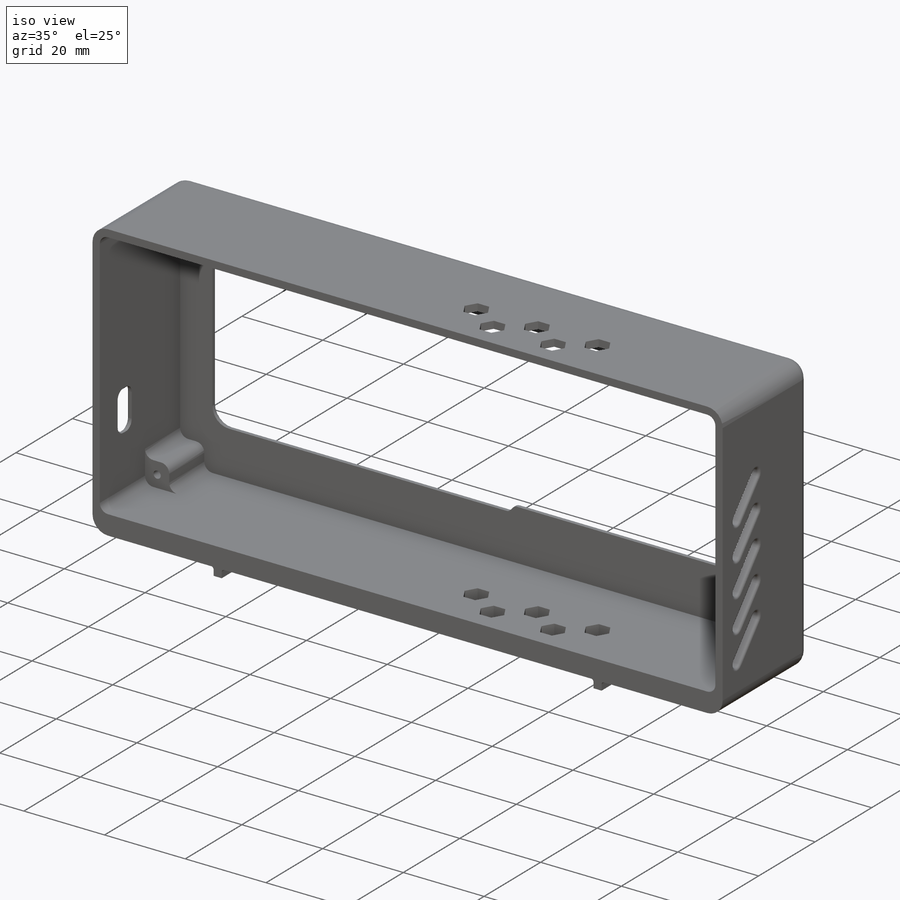
[diagram: iso view]
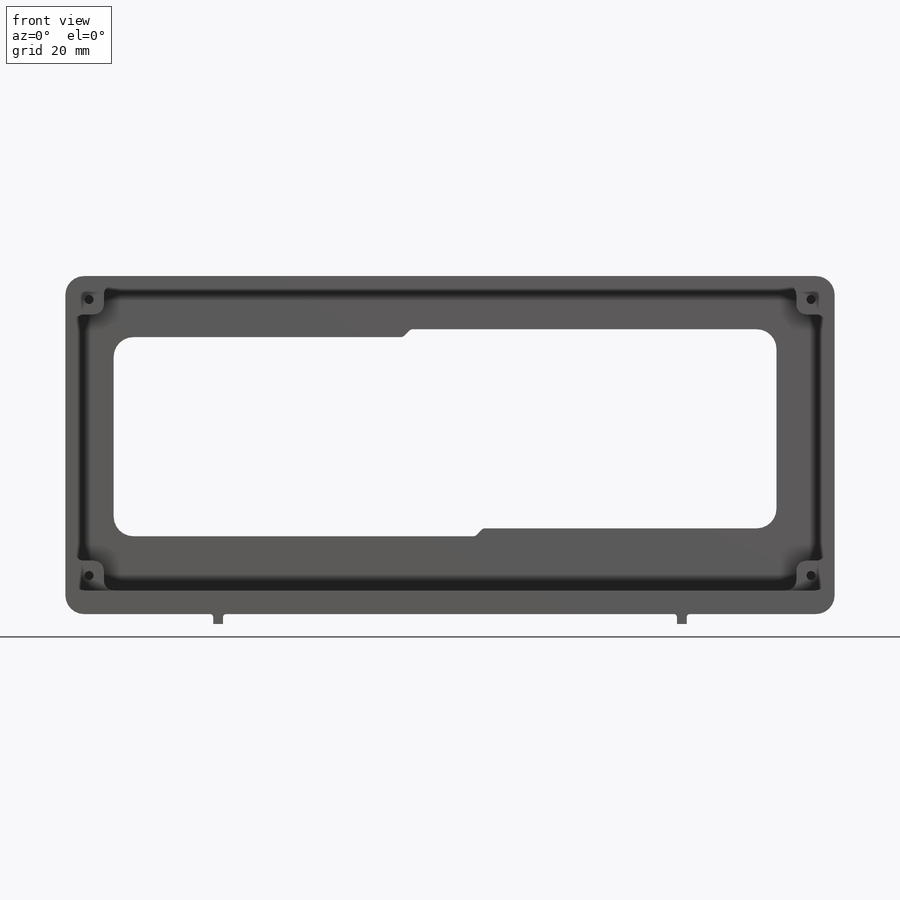
[diagram: front view]
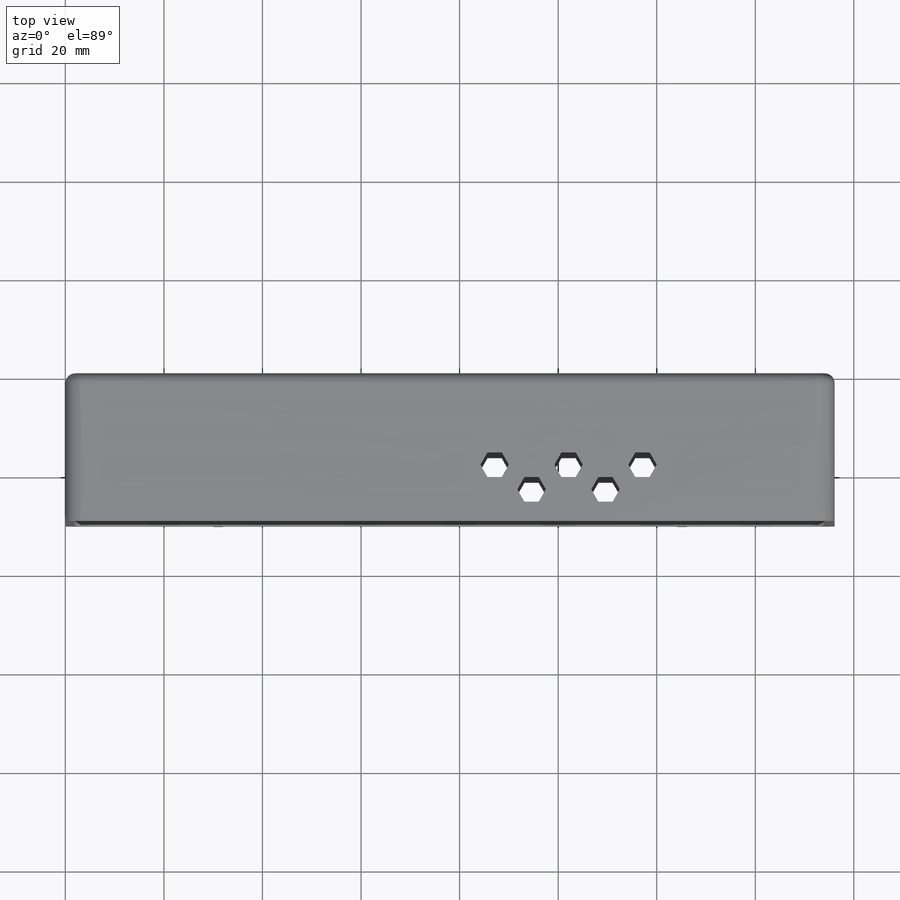
[diagram: top view]
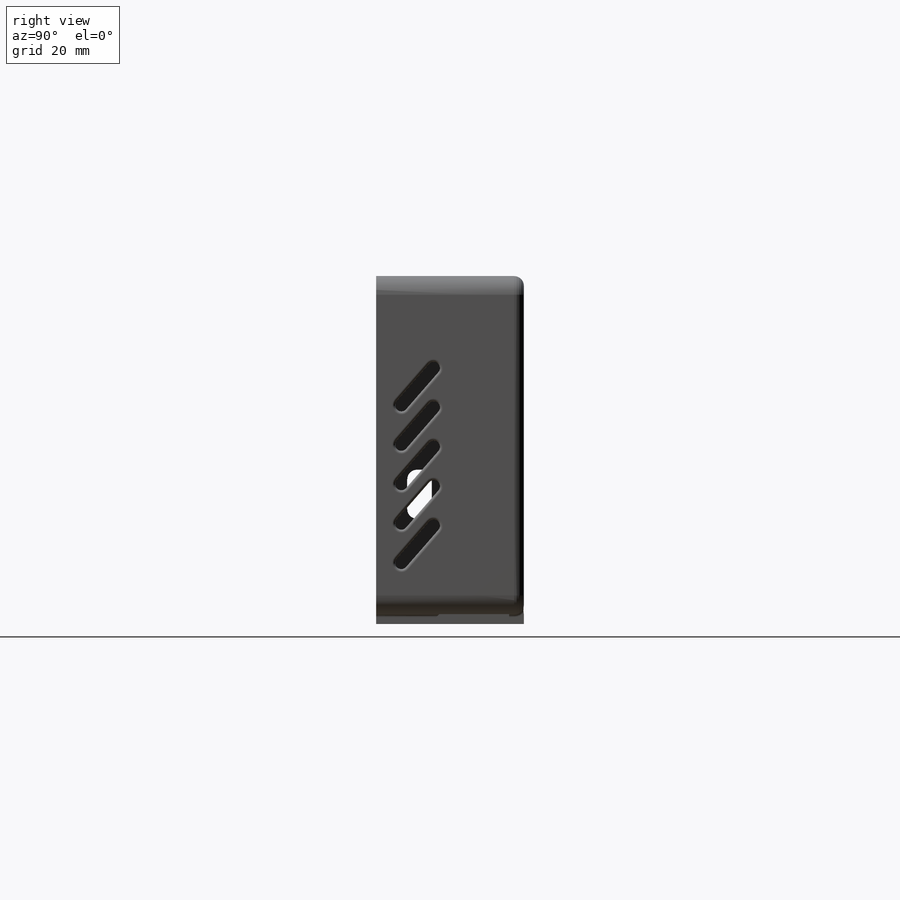
[diagram: right view]
SOLIDWORKS PART (.sldprt)
format: sldprt  version: not decoded by parser v0  size: 851,456 bytes
history: native  units: mm
features: sketch x11, fillet x11, cut_extrude x8, extrude x3, material x1, chamfer x1 (+12 scaffold rows collapsed)
feature tree (47):
  scaffold x12  (default folders/planes/origin — collapsed)
  material  "Material <not specified>"
  sketch  "Sketch1"  dims[D1=156.1mm D2=68.6mm]
  extrude  "Boss-Extrude1"  Depth=30mm
  sketch  "Sketch2"  dims[D1=1.8mm D2=1.8mm D3=1.8mm D4=4.8mm]
  cut_extrude  "Cut-Extrude1"  Depth=28.4mm
  sketch  "Sketch3"  dims[D1=9.0mm D2=8.0mm D3=11.0mm D4=10.0mm D5=1.6mm D6=1.6mm]
  cut_extrude  "Cut-Extrude2"  Depth=28.4mm
  fillet  "Fillet1"  Radius=4mm
  sketch  "Sketch4"  dims[D1=2.0mm D2=30.0mm D3=2.0mm D4=30.0mm]
  sketch  "Sketch5"  dims[D1=14.0mm D2=6.0mm D3=6.0mm D4=6.0mm D5=8.0mm D6=8.0mm D7=15.0mm D8=15.0mm D9=15.0mm D10=7.5mm D11=5.0mm D12=5.0mm D13=5.0mm D14=5.0mm D15=5.0mm]
  cut_extrude  "Cut-Extrude3"  Depth=71.4mm
  sketch  "Sketch6"  dims[D1=6.0mm D2=6.0mm D3=6.0mm D4=6.0mm D5=6.0mm D6=6.0mm D7=6.0mm D8=6.0mm D9=6.0mm]
  extrude  "Boss-Extrude3"  Depth=12.4mm
  sketch  "Sketch7"  dims[D1=1.8mm D2=1.8mm D3=1.8mm D4=1.8mm]
  cut_extrude  "Cut-Extrude4"  Depth=10mm
  sketch  "Sketch8"  dims[D1=17.1mm D2=14.5mm D3=10.0mm D4=5.0mm]
  cut_extrude  "Cut-Extrude5"  Depth=10mm
  sketch  "Sketch9"  dims[D1=14.0mm D2=5.0]
  cut_extrude  "Cut-Extrude6"  Depth=10mm
  fillet  "Fillet2"  Radius=2mm
  fillet  "Fillet3"  Radius=3.8mm
  fillet  "Fillet4"  Radius=2mm
  fillet  "Fillet5"  Radius=2mm
  sketch  "Sketch10"  dims[D1=11.0mm D2=1.0mm D3=145.0mm D4=1.5mm]
  cut_extrude  "Cut-Extrude7"  Depth=3.2mm
  chamfer  "Chamfer1"  Distance=3.2mm Angle=45deg
  extrude  "Boss-Extrude4"  Depth=2mm
  fillet  "Fillet6"  Radius=3.8mm
  fillet  "Fillet7"  Radius=1mm
  fillet  "Fillet8"  Radius=1mm
  fillet  "Fillet9"  Radius=0.6mm
  sketch  "Sketch11"  dims[D5=4.0mm D1=8.0mm D2=4.0mm D3=8.0mm D4=4.0mm]
  cut_extrude  "Cut-Extrude8"  Depth=0.6mm
  fillet  "Fillet10"  Radius=0.6mm
  fillet  "Fillet11"  Radius=0.6mm
decode coverage: 34 of 34 modeling features carry decoded parameters
note: suppression state not decoded; provenance and decode notes live in map.json
